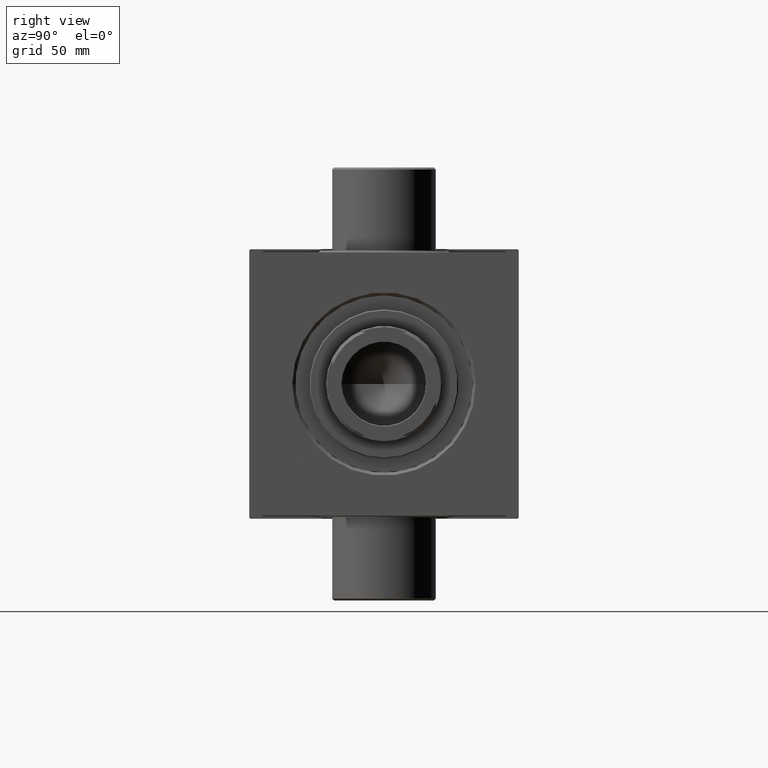
[diagram: clean part render]
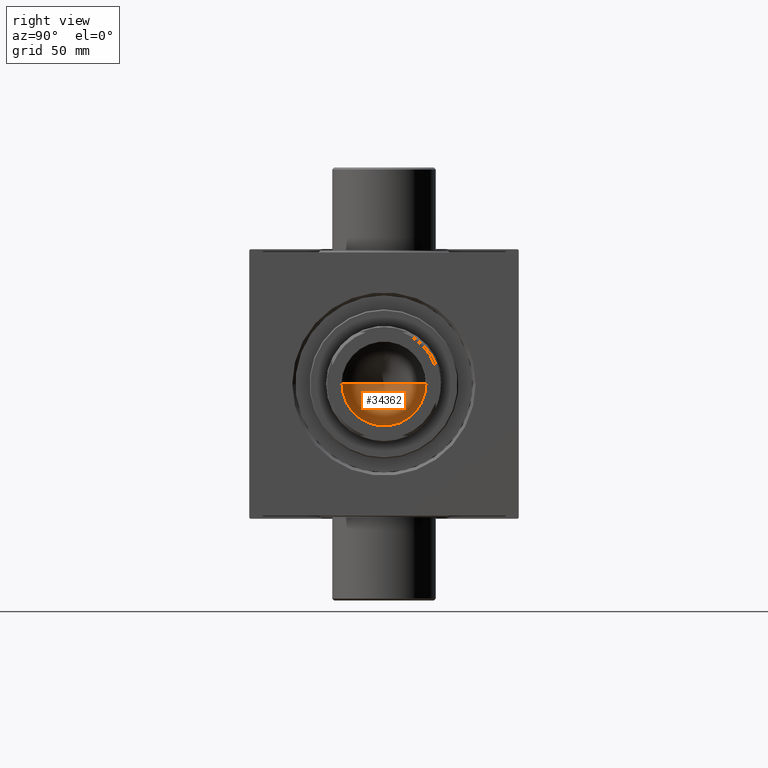
[diagram: same view with one face highlighted and labeled with its STEP entity id]
A machine part, right view. The second image highlights one B-rep face of the part: STEP entity #34362.
In plain terms, the highlighted conical surface has half-angle 59 deg.
Its self-contained STEP definition (entity closure, byte-faithful):
#95 = VERTEX_POINT ( 'NONE', #19453 ) ;
#2937 = VERTEX_POINT ( 'NONE', #9262 ) ;
#3969 = LINE ( 'NONE', #39523, #24680 ) ;
#4373 = DIRECTION ( 'NONE',  ( 0.8571673007021115565, 0.000000000000000000, 0.5150380749100554878 ) ) ;
#4603 = CONICAL_SURFACE ( 'NONE', #21972, 20.24999999999998934, 1.029744258676652979 ) ;
#5667 = EDGE_CURVE ( 'NONE', #95, #20704, #15276, .T. ) ;
#5913 = DIRECTION ( 'NONE',  ( 1.000000000000000000, 0.000000000000000000, 0.000000000000000000 ) ) ;
#9262 = CARTESIAN_POINT ( 'NONE',  ( -20.24999999999998934, 2.479909768273389117E-15, 117.0000000000000142 ) ) ;
#15276 = LINE ( 'NONE', #19527, #36069 ) ;
#16586 = DIRECTION ( 'NONE',  ( -0.000000000000000000, -0.000000000000000000, 1.000000000000000000 ) ) ;
#17743 = EDGE_LOOP ( 'NONE', ( #25396, #18802, #34248 ) ) ;
#18129 = FACE_OUTER_BOUND ( 'NONE', #17743, .T. ) ;
#18174 = EDGE_CURVE ( 'NONE', #95, #2937, #3969, .T. ) ;
#18802 = ORIENTED_EDGE ( 'NONE', *, *, #5667, .T. ) ;
#19453 = CARTESIAN_POINT ( 'NONE',  ( -1.584115414415908206E-14, 0.000000000000000000, 104.8325724646918928 ) ) ;
#19527 = CARTESIAN_POINT ( 'NONE',  ( 20.24999999999998934, 0.000000000000000000, 117.0000000000000142 ) ) ;
#20704 = VERTEX_POINT ( 'NONE', #25684 ) ;
#21972 = AXIS2_PLACEMENT_3D ( 'NONE', #25971, #37102, #29309 ) ;
#24680 = VECTOR ( 'NONE', #29112, 1000.000000000000000 ) ;
#25396 = ORIENTED_EDGE ( 'NONE', *, *, #18174, .F. ) ;
#25684 = CARTESIAN_POINT ( 'NONE',  ( 20.24999999999998934, 0.000000000000000000, 117.0000000000000142 ) ) ;
#25971 = CARTESIAN_POINT ( 'NONE',  ( 0.000000000000000000, 0.000000000000000000, 117.0000000000000142 ) ) ;
#29112 = DIRECTION ( 'NONE',  ( -0.8571673007021115565, 1.049727191138617710E-16, 0.5150380749100554878 ) ) ;
#29309 = DIRECTION ( 'NONE',  ( 1.000000000000000000, 0.000000000000000000, 0.000000000000000000 ) ) ;
#30838 = CARTESIAN_POINT ( 'NONE',  ( 0.000000000000000000, 0.000000000000000000, 117.0000000000000142 ) ) ;
#31973 = AXIS2_PLACEMENT_3D ( 'NONE', #30838, #16586, #5913 ) ;
#34248 = ORIENTED_EDGE ( 'NONE', *, *, #39260, .T. ) ;
#34362 = ADVANCED_FACE ( 'NONE', ( #18129 ), #4603, .F. ) ;
#36069 = VECTOR ( 'NONE', #4373, 1000.000000000000000 ) ;
#37102 = DIRECTION ( 'NONE',  ( -0.000000000000000000, -0.000000000000000000, 1.000000000000000000 ) ) ;
#39260 = EDGE_CURVE ( 'NONE', #20704, #2937, #45598, .T. ) ;
#39523 = CARTESIAN_POINT ( 'NONE',  ( -20.24999999999998934, 2.479909768273389117E-15, 117.0000000000000142 ) ) ;
#45598 = CIRCLE ( 'NONE', #31973, 20.24999999999998934 ) ;